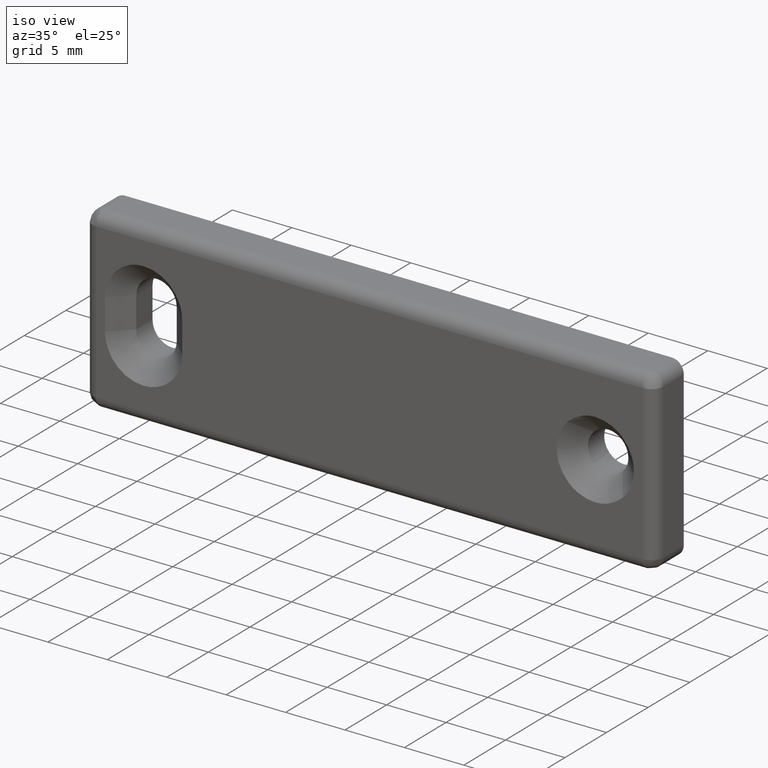
[diagram: clean part render]
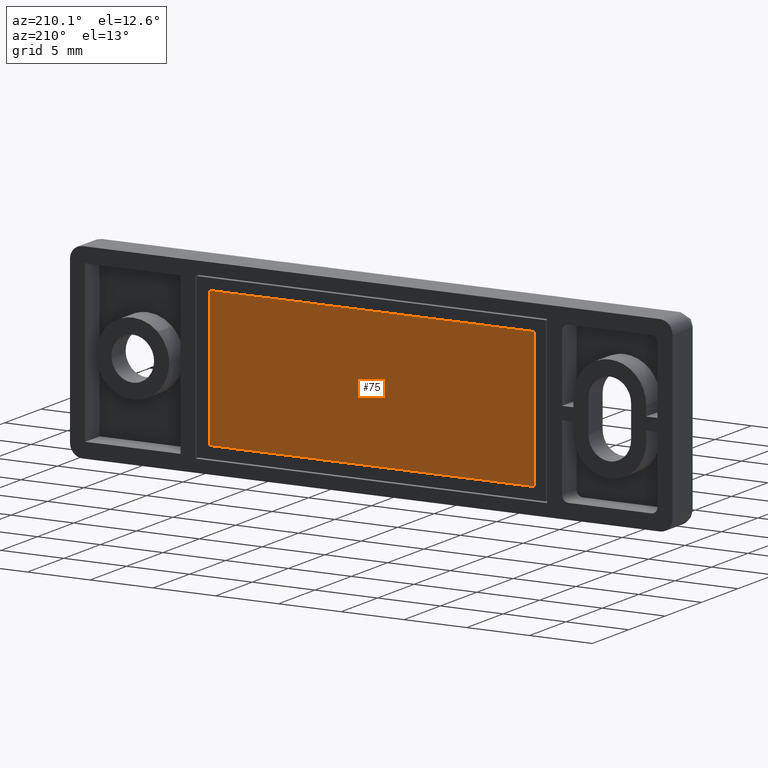
[diagram: tour spotlight — one face highlighted and labeled with its STEP entity id]
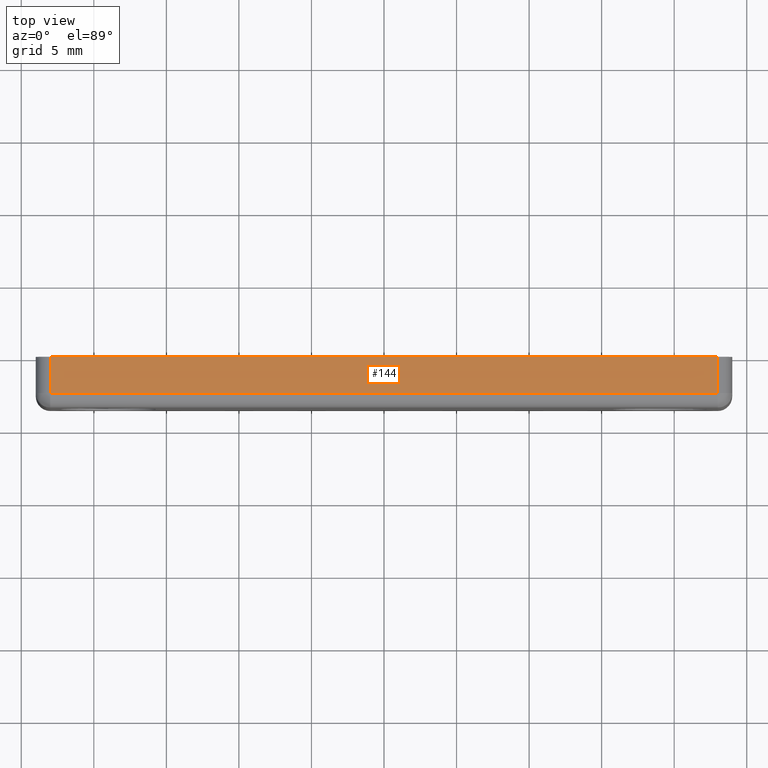
[diagram: tour spotlight — one face highlighted and labeled with its STEP entity id]
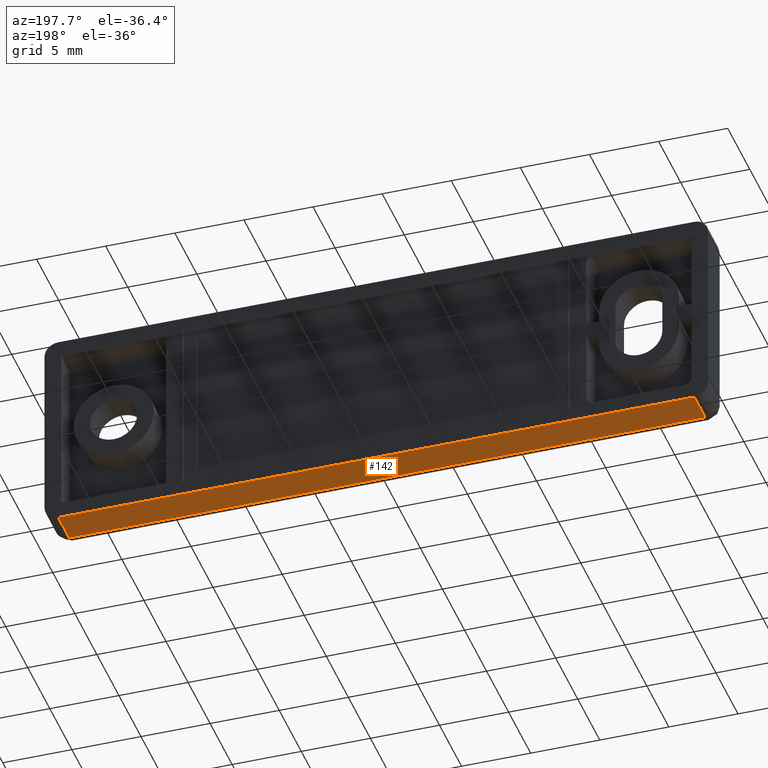
[diagram: tour spotlight — one face highlighted and labeled with its STEP entity id]
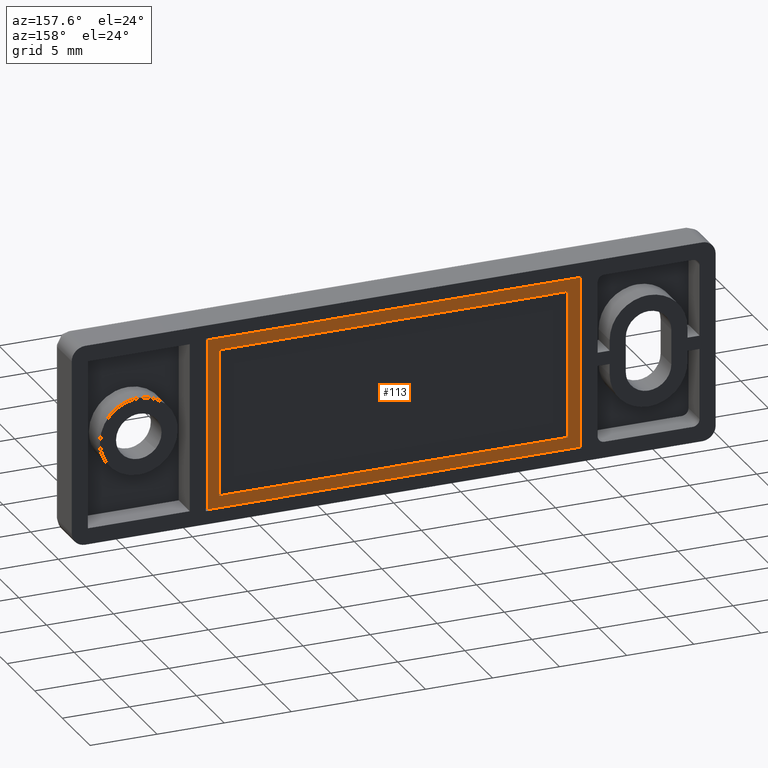
[diagram: tour spotlight — one face highlighted and labeled with its STEP entity id]
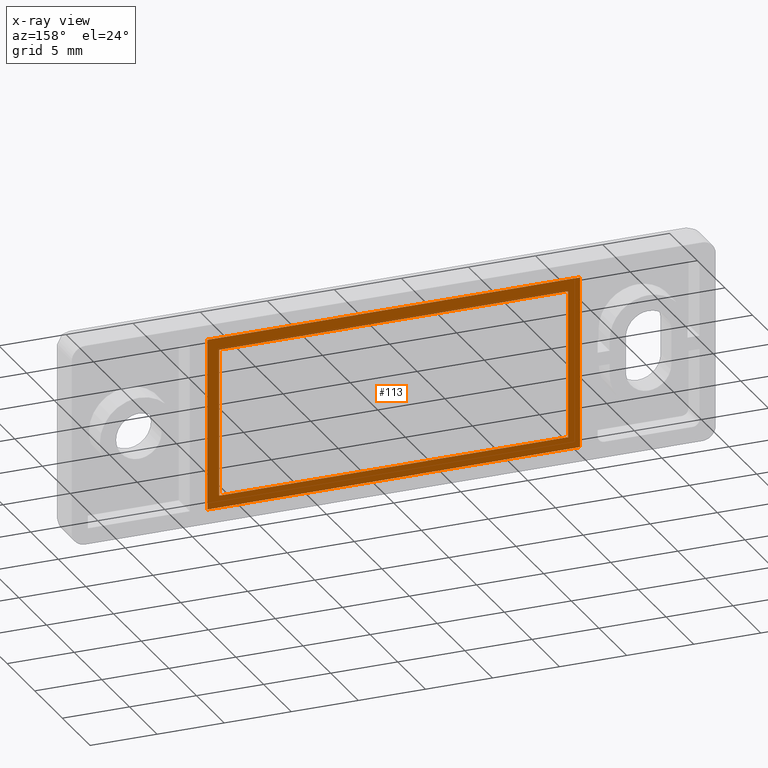
[diagram: x-ray of the same camera — body ghosted, this tour face saturated]
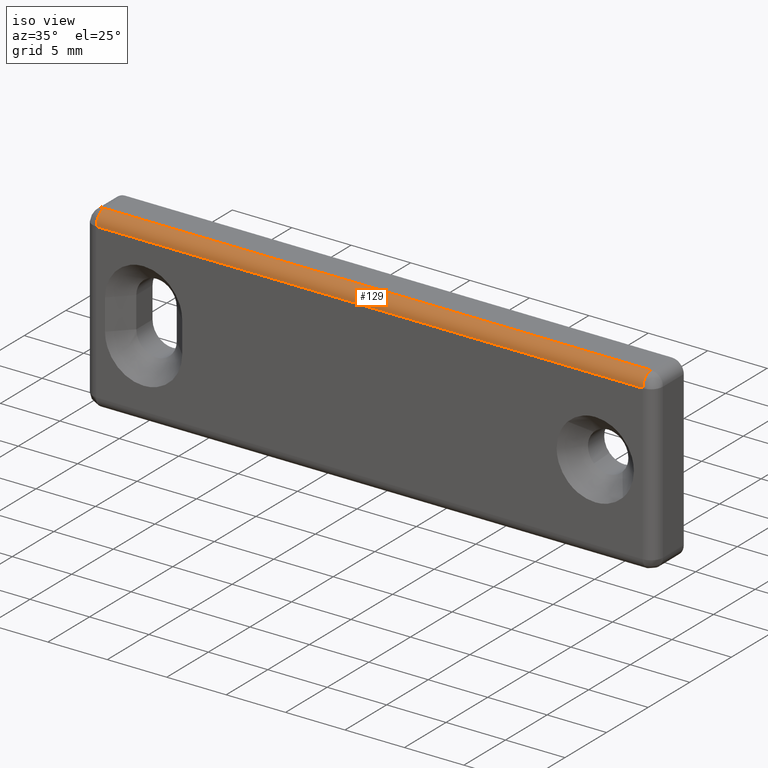
[diagram: tour spotlight — one face highlighted and labeled with its STEP entity id]
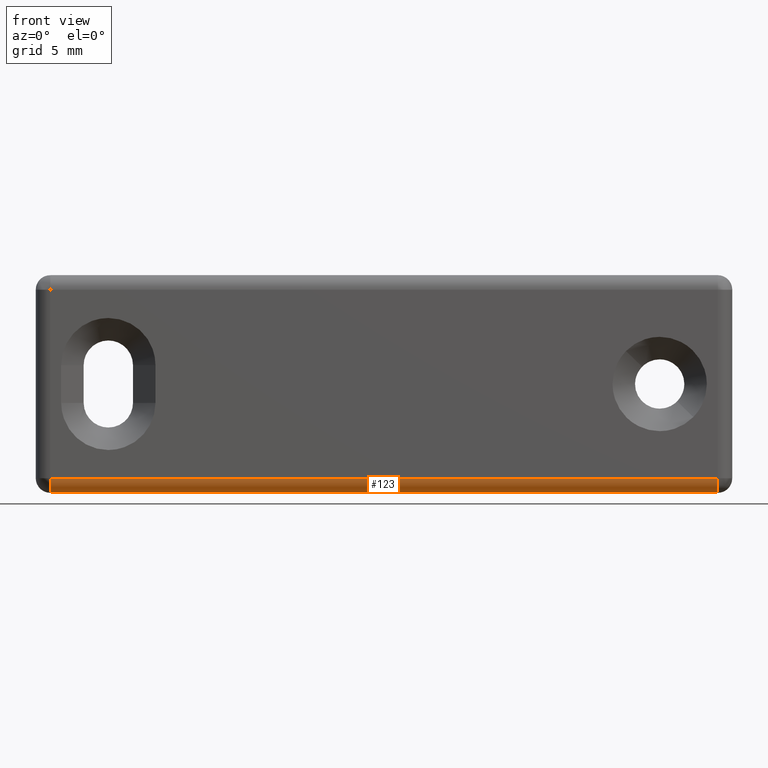
[diagram: tour spotlight — one face highlighted and labeled with its STEP entity id]
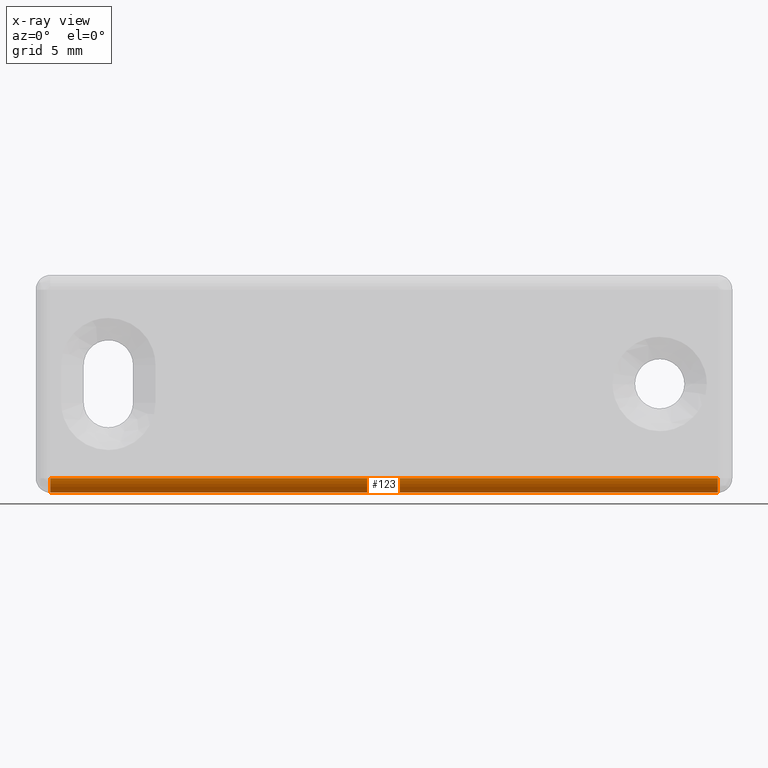
[diagram: x-ray of the same camera — body ghosted, this tour face saturated]
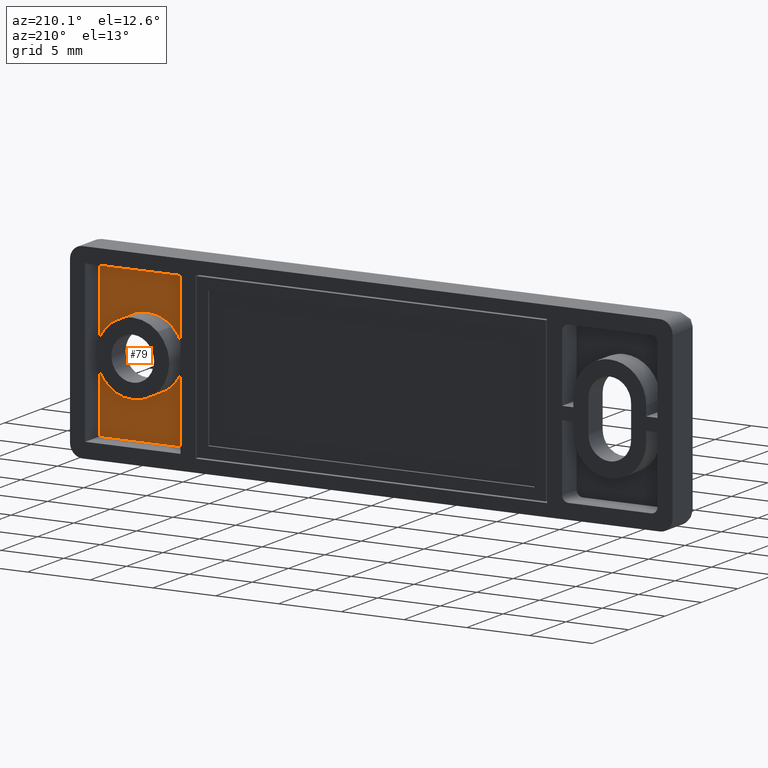
[diagram: tour spotlight — one face highlighted and labeled with its STEP entity id]
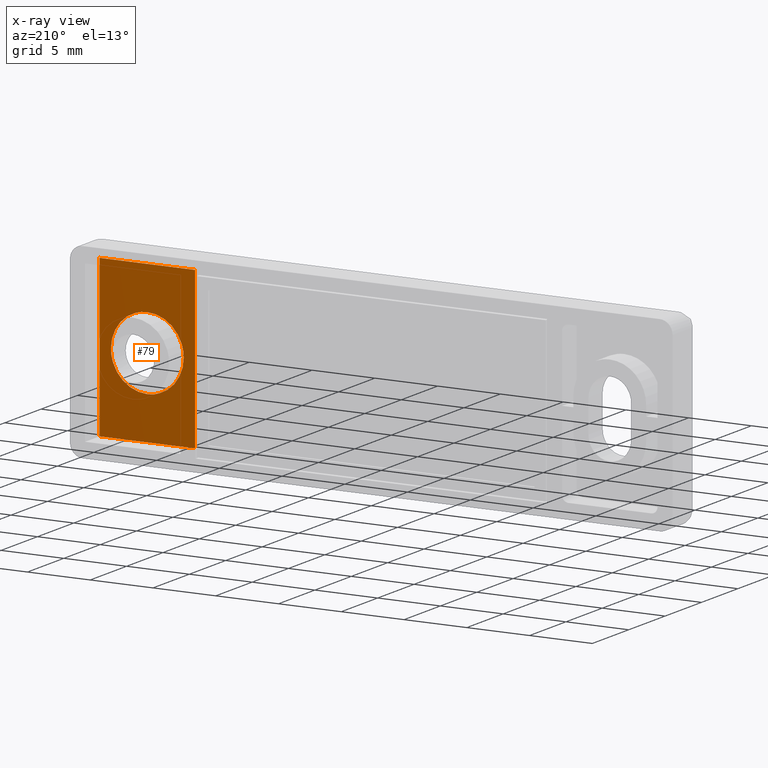
[diagram: x-ray of the same camera — body ghosted, this tour face saturated]
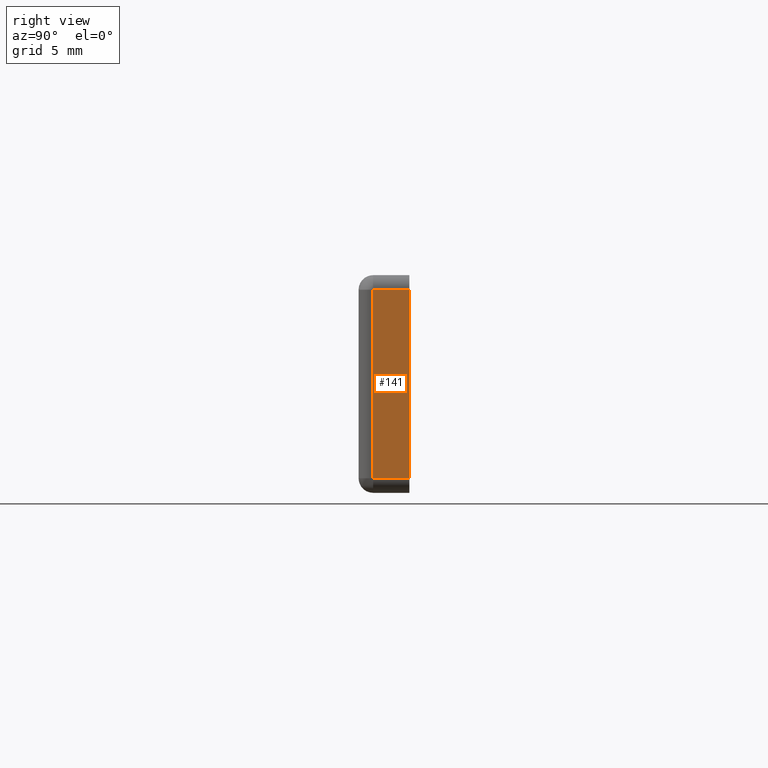
[diagram: tour spotlight — one face highlighted and labeled with its STEP entity id]
A machine part: a face-by-face anatomy tour. The part has 75 B-rep faces; the first image is the clean iso view, then the 8 largest visible faces are spotlighted one at a time (largest first), each with its STEP entity span.

Face 1 — auxiliary view, entity #75. In plain terms, the highlighted planar face has unit normal (0, 1, 0).
Definition (entity closure, byte-faithful):
#75=ADVANCED_FACE('',(#151),#150,.T.);
#150=PLANE('',#914);
#151=FACE_OUTER_BOUND('',#915,.T.);
#911=CARTESIAN_POINT('',(-1.56000000000E+01,-2.00000000000E-01,6.60000000000E+00));
#912=DIRECTION('',(0.00000000000E+00,1.00000000000E+00,0.00000000000E+00));
#913=DIRECTION('',(1.00000000000E+00,0.00000000000E+00,-3.10580123078E-17));
#914=AXIS2_PLACEMENT_3D('',#911,#912,#913);
#915=EDGE_LOOP('',(#1397,#1398,#1399,#1400));
#1397=ORIENTED_EDGE('',*,*,#1833,.F.);
#1398=ORIENTED_EDGE('',*,*,#1834,.F.);
#1399=ORIENTED_EDGE('',*,*,#1835,.F.);
#1400=ORIENTED_EDGE('',*,*,#1836,.F.);
#1833=EDGE_CURVE('',#2051,#2052,#2053,.T.);
#1834=EDGE_CURVE('',#2059,#2051,#2060,.T.);
#1835=EDGE_CURVE('',#2066,#2059,#2067,.T.);
#1836=EDGE_CURVE('',#2052,#2066,#2073,.T.);
#2051=VERTEX_POINT('',#3511);
#2052=VERTEX_POINT('',#3512);
#2053=LINE('',#3513,#3514);
#2059=VERTEX_POINT('',#3516);
#2060=LINE('',#3517,#3518);
#2066=VERTEX_POINT('',#3520);
#2067=LINE('',#3521,#3522);
#2073=LINE('',#3524,#3525);
#3511=CARTESIAN_POINT('',(1.30000000000E+01,-2.00000000000E-01,5.50000000000E+00));
#3512=CARTESIAN_POINT('',(-1.30000000000E+01,-2.00000000000E-01,5.50000000000E+00));
#3513=CARTESIAN_POINT('',(1.30000000000E+01,-2.00000000000E-01,5.50000000000E+00));
#3514=VECTOR('',#3515,2.60000000000E+01);
#3515=DIRECTION('',(-1.00000000000E+00,0.00000000000E+00,0.00000000000E+00));
#3516=CARTESIAN_POINT('',(1.30000000000E+01,-2.00000000000E-01,-5.50000000000E+00));
#3517=CARTESIAN_POINT('',(1.30000000000E+01,-2.00000000000E-01,-5.50000000000E+00));
#3518=VECTOR('',#3519,1.10000000000E+01);
#3519=DIRECTION('',(0.00000000000E+00,0.00000000000E+00,1.00000000000E+00));
#3520=CARTESIAN_POINT('',(-1.30000000000E+01,-2.00000000000E-01,-5.50000000000E+00));
#3521=CARTESIAN_POINT('',(-1.30000000000E+01,-2.00000000000E-01,-5.50000000000E+00));
#3522=VECTOR('',#3523,2.60000000000E+01);
#3523=DIRECTION('',(1.00000000000E+00,0.00000000000E+00,0.00000000000E+00));
#3524=CARTESIAN_POINT('',(-1.30000000000E+01,-2.00000000000E-01,5.50000000000E+00));
#3525=VECTOR('',#3526,1.10000000000E+01);
#3526=DIRECTION('',(0.00000000000E+00,0.00000000000E+00,-1.00000000000E+00));

Face 2 — top view, entity #144. In plain terms, the highlighted planar face has unit normal (0, 0, -1).
Definition (entity closure, byte-faithful):
#144=ADVANCED_FACE('',(#847),#846,.F.);
#846=PLANE('',#1353);
#847=FACE_OUTER_BOUND('',#1354,.T.);
#1350=CARTESIAN_POINT('',(2.76000000000E+01,-2.75000000000E+00,7.50000000000E+00));
#1351=DIRECTION('',(0.00000000000E+00,0.00000000000E+00,-1.00000000000E+00));
#1352=DIRECTION('',(-1.00000000000E+00,0.00000000000E+00,0.00000000000E+00));
#1353=AXIS2_PLACEMENT_3D('',#1350,#1351,#1352);
#1354=EDGE_LOOP('',(#1745,#1746,#1747,#1748));
#1745=ORIENTED_EDGE('',*,*,#2046,.T.);
#1746=ORIENTED_EDGE('',*,*,#2018,.T.);
#1747=ORIENTED_EDGE('',*,*,#2015,.T.);
#1748=ORIENTED_EDGE('',*,*,#2022,.T.);
#2015=EDGE_CURVE('',#3226,#3272,#3279,.T.);
#2018=EDGE_CURVE('',#3286,#3226,#3299,.T.);
#2022=EDGE_CURVE('',#3272,#3318,#3325,.T.);
#2046=EDGE_CURVE('',#3318,#3286,#3481,.T.);
#3226=VERTEX_POINT('',#4494);
#3272=VERTEX_POINT('',#4544);
#3279=LINE('',#4554,#4555);
#3286=VERTEX_POINT('',#4558);
#3299=LINE('',#4570,#4571);
#3318=VERTEX_POINT('',#4585);
#3325=LINE('',#4595,#4596);
#3481=LINE('',#4730,#4731);
#4494=CARTESIAN_POINT('',(-2.30000000000E+01,-2.50000000000E+00,7.50000000000E+00));
#4544=CARTESIAN_POINT('',(2.30000000000E+01,-2.50000000000E+00,7.50000000000E+00));
#4554=CARTESIAN_POINT('',(-2.30000000000E+01,-2.50000000000E+00,7.50000000000E+00));
#4555=VECTOR('',#4556,4.60000000000E+01);
#4556=DIRECTION('',(1.00000000000E+00,0.00000000000E+00,0.00000000000E+00));
#4558=CARTESIAN_POINT('',(-2.30000000000E+01,0.00000000000E+00,7.50000000000E+00));
#4570=CARTESIAN_POINT('',(-2.30000000000E+01,0.00000000000E+00,7.50000000000E+00));
#4571=VECTOR('',#4572,2.50000000000E+00);
#4572=DIRECTION('',(0.00000000000E+00,-1.00000000000E+00,0.00000000000E+00));
#4585=CARTESIAN_POINT('',(2.30000000000E+01,0.00000000000E+00,7.50000000000E+00));
#4595=CARTESIAN_POINT('',(2.30000000000E+01,-2.50000000000E+00,7.50000000000E+00));
#4596=VECTOR('',#4597,2.50000000000E+00);
#4597=DIRECTION('',(0.00000000000E+00,1.00000000000E+00,0.00000000000E+00));
#4730=CARTESIAN_POINT('',(2.30000000000E+01,0.00000000000E+00,7.50000000000E+00));
#4731=VECTOR('',#4732,4.60000000000E+01);
#4732=DIRECTION('',(-1.00000000000E+00,0.00000000000E+00,0.00000000000E+00));

Face 3 — auxiliary view, entity #142. In plain terms, the highlighted planar face has unit normal (0, 0, 1).
Definition (entity closure, byte-faithful):
#142=ADVANCED_FACE('',(#827),#826,.F.);
#826=PLANE('',#1343);
#827=FACE_OUTER_BOUND('',#1344,.T.);
#1340=CARTESIAN_POINT('',(-2.76000000000E+01,-2.75000000000E+00,-7.50000000000E+00));
#1341=DIRECTION('',(0.00000000000E+00,0.00000000000E+00,1.00000000000E+00));
#1342=DIRECTION('',(1.00000000000E+00,0.00000000000E+00,0.00000000000E+00));
#1343=AXIS2_PLACEMENT_3D('',#1340,#1341,#1342);
#1344=EDGE_LOOP('',(#1737,#1738,#1739,#1740));
#1737=ORIENTED_EDGE('',*,*,#2002,.T.);
#1738=ORIENTED_EDGE('',*,*,#1998,.T.);
#1739=ORIENTED_EDGE('',*,*,#2044,.T.);
#1740=ORIENTED_EDGE('',*,*,#2011,.T.);
#1998=EDGE_CURVE('',#3147,#3162,#3169,.T.);
#2002=EDGE_CURVE('',#3187,#3147,#3194,.T.);
#2011=EDGE_CURVE('',#3240,#3187,#3253,.T.);
#2044=EDGE_CURVE('',#3162,#3240,#3469,.T.);
#3147=VERTEX_POINT('',#4400);
#3162=VERTEX_POINT('',#4416);
#3169=LINE('',#4426,#4427);
#3187=VERTEX_POINT('',#4447);
#3194=LINE('',#4457,#4458);
#3240=VERTEX_POINT('',#4515);
#3253=LINE('',#4527,#4528);
#3469=LINE('',#4724,#4725);
#4400=CARTESIAN_POINT('',(-2.30000000000E+01,-2.50000000000E+00,-7.50000000000E+00));
#4416=CARTESIAN_POINT('',(-2.30000000000E+01,0.00000000000E+00,-7.50000000000E+00));
#4426=CARTESIAN_POINT('',(-2.30000000000E+01,-2.50000000000E+00,-7.50000000000E+00));
#4427=VECTOR('',#4428,2.50000000000E+00);
#4428=DIRECTION('',(0.00000000000E+00,1.00000000000E+00,0.00000000000E+00));
#4447=CARTESIAN_POINT('',(2.30000000000E+01,-2.50000000000E+00,-7.50000000000E+00));
#4457=CARTESIAN_POINT('',(2.30000000000E+01,-2.50000000000E+00,-7.50000000000E+00));
#4458=VECTOR('',#4459,4.60000000000E+01);
#4459=DIRECTION('',(-1.00000000000E+00,0.00000000000E+00,0.00000000000E+00));
#4515=CARTESIAN_POINT('',(2.30000000000E+01,0.00000000000E+00,-7.50000000000E+00));
#4527=CARTESIAN_POINT('',(2.30000000000E+01,0.00000000000E+00,-7.50000000000E+00));
#4528=VECTOR('',#4529,2.50000000000E+00);
#4529=DIRECTION('',(0.00000000000E+00,-1.00000000000E+00,0.00000000000E+00));
#4724=CARTESIAN_POINT('',(-2.30000000000E+01,0.00000000000E+00,-7.50000000000E+00));
#4725=VECTOR('',#4726,4.60000000000E+01);
#4726=DIRECTION('',(1.00000000000E+00,0.00000000000E+00,0.00000000000E+00));

Face 4 — auxiliary view, entity #113. An x-ray twin of the same camera follows (body ghosted, this face saturated) — the face is partly hidden behind the body. In plain terms, the highlighted planar face has unit normal (0, 1, 0).
Definition (entity closure, byte-faithful):
#113=ADVANCED_FACE('',(#536,#537),#535,.T.);
#535=PLANE('',#1129);
#536=FACE_OUTER_BOUND('',#1130,.T.);
#537=FACE_BOUND('',#1131,.T.);
#1126=CARTESIAN_POINT('',(-1.66800000000E+01,0.00000000000E+00,7.68000000000E+00));
#1127=DIRECTION('',(-0.00000000000E+00,1.00000000000E+00,0.00000000000E+00));
#1128=DIRECTION('',(1.00000000000E+00,0.00000000000E+00,0.00000000000E+00));
#1129=AXIS2_PLACEMENT_3D('',#1126,#1127,#1128);
#1130=EDGE_LOOP('',(#1613,#1614,#1615,#1616));
#1131=EDGE_LOOP('',(#1617,#1618,#1619,#1620));
#1613=ORIENTED_EDGE('',*,*,#1981,.F.);
#1614=ORIENTED_EDGE('',*,*,#1974,.F.);
#1615=ORIENTED_EDGE('',*,*,#1977,.F.);
#1616=ORIENTED_EDGE('',*,*,#1979,.F.);
#1617=ORIENTED_EDGE('',*,*,#1982,.T.);
#1618=ORIENTED_EDGE('',*,*,#1983,.T.);
#1619=ORIENTED_EDGE('',*,*,#1984,.T.);
#1620=ORIENTED_EDGE('',*,*,#1985,.T.);
#1974=EDGE_CURVE('',#3011,#3012,#3013,.T.);
#1977=EDGE_CURVE('',#3031,#3011,#3032,.T.);
#1979=EDGE_CURVE('',#3044,#3031,#3045,.T.);
#1981=EDGE_CURVE('',#3012,#3044,#3057,.T.);
#1982=EDGE_CURVE('',#3063,#3064,#3065,.T.);
#1983=EDGE_CURVE('',#3064,#3071,#3072,.T.);
#1984=EDGE_CURVE('',#3071,#3078,#3079,.T.);
#1985=EDGE_CURVE('',#3078,#3063,#3085,.T.);
#3011=VERTEX_POINT('',#4327);
#3012=VERTEX_POINT('',#4328);
#3013=LINE('',#4329,#4330);
#3031=VERTEX_POINT('',#4338);
#3032=LINE('',#4339,#4340);
#3044=VERTEX_POINT('',#4345);
#3045=LINE('',#4346,#4347);
#3057=LINE('',#4352,#4353);
#3063=VERTEX_POINT('',#4355);
#3064=VERTEX_POINT('',#4356);
#3065=LINE('',#4357,#4358);
#3071=VERTEX_POINT('',#4360);
#3072=LINE('',#4361,#4362);
#3078=VERTEX_POINT('',#4364);
#3079=LINE('',#4365,#4366);
#3085=LINE('',#4368,#4369);
#4327=CARTESIAN_POINT('',(1.39000000000E+01,0.00000000000E+00,-6.40000000000E+00));
#4328=CARTESIAN_POINT('',(1.39000000000E+01,0.00000000000E+00,6.40000000000E+00));
#4329=CARTESIAN_POINT('',(1.39000000000E+01,0.00000000000E+00,-6.40000000000E+00));
#4330=VECTOR('',#4331,1.28000000000E+01);
#4331=DIRECTION('',(0.00000000000E+00,0.00000000000E+00,1.00000000000E+00));
#4338=CARTESIAN_POINT('',(-1.39000000000E+01,0.00000000000E+00,-6.40000000000E+00));
#4339=CARTESIAN_POINT('',(-1.39000000000E+01,0.00000000000E+00,-6.40000000000E+00));
#4340=VECTOR('',#4341,2.78000000000E+01);
#4341=DIRECTION('',(1.00000000000E+00,0.00000000000E+00,0.00000000000E+00));
#4345=CARTESIAN_POINT('',(-1.39000000000E+01,0.00000000000E+00,6.40000000000E+00));
#4346=CARTESIAN_POINT('',(-1.39000000000E+01,0.00000000000E+00,6.40000000000E+00));
#4347=VECTOR('',#4348,1.28000000000E+01);
#4348=DIRECTION('',(0.00000000000E+00,0.00000000000E+00,-1.00000000000E+00));
#4352=CARTESIAN_POINT('',(1.39000000000E+01,0.00000000000E+00,6.40000000000E+00));
#4353=VECTOR('',#4354,2.78000000000E+01);
#4354=DIRECTION('',(-1.00000000000E+00,0.00000000000E+00,0.00000000000E+00));
#4355=CARTESIAN_POINT('',(1.30000000000E+01,0.00000000000E+00,-5.50000000000E+00));
#4356=CARTESIAN_POINT('',(1.30000000000E+01,0.00000000000E+00,5.50000000000E+00));
#4357=CARTESIAN_POINT('',(1.30000000000E+01,0.00000000000E+00,-5.50000000000E+00));
#4358=VECTOR('',#4359,1.10000000000E+01);
#4359=DIRECTION('',(0.00000000000E+00,0.00000000000E+00,1.00000000000E+00));
#4360=CARTESIAN_POINT('',(-1.30000000000E+01,0.00000000000E+00,5.50000000000E+00));
#4361=CARTESIAN_POINT('',(1.30000000000E+01,0.00000000000E+00,5.50000000000E+00));
#4362=VECTOR('',#4363,2.60000000000E+01);
#4363=DIRECTION('',(-1.00000000000E+00,0.00000000000E+00,0.00000000000E+00));
#4364=CARTESIAN_POINT('',(-1.30000000000E+01,0.00000000000E+00,-5.50000000000E+00));
#4365=CARTESIAN_POINT('',(-1.30000000000E+01,0.00000000000E+00,5.50000000000E+00));
#4366=VECTOR('',#4367,1.10000000000E+01);
#4367=DIRECTION('',(0.00000000000E+00,0.00000000000E+00,-1.00000000000E+00));
#4368=CARTESIAN_POINT('',(-1.30000000000E+01,0.00000000000E+00,-5.50000000000E+00));
#4369=VECTOR('',#4370,2.60000000000E+01);
#4370=DIRECTION('',(1.00000000000E+00,0.00000000000E+00,0.00000000000E+00));

Face 5 — iso view, entity #129. In plain terms, the highlighted cylindrical surface (edge-blend (fillet) strip) has radius 1 mm, axis along (-1, -0, 0).
Definition (entity closure, byte-faithful):
#129=ADVANCED_FACE('',(#697),#696,.T.);
#696=CYLINDRICAL_SURFACE('',#1246,1.00000000000E+00);
#697=FACE_OUTER_BOUND('',#1247,.T.);
#1243=CARTESIAN_POINT('',(-2.41787500000E+01,-2.50000000000E+00,6.50000000000E+00));
#1244=DIRECTION('',(-1.00000000000E+00,-7.67244086622E-15,6.09057965495E-15));
#1245=DIRECTION('',(-5.88765147747E-15,-2.61769483077E-02,-9.99657324976E-01));
#1246=AXIS2_PLACEMENT_3D('',#1243,#1244,#1245);
#1247=EDGE_LOOP('',(#1678,#1679,#1680,#1681));
#1678=ORIENTED_EDGE('',*,*,#2014,.T.);
#1679=ORIENTED_EDGE('',*,*,#2015,.F.);
#1680=ORIENTED_EDGE('',*,*,#2007,.F.);
#1681=ORIENTED_EDGE('',*,*,#1958,.F.);
#1958=EDGE_CURVE('',#2893,#2900,#2901,.T.);
#2007=EDGE_CURVE('',#2900,#3226,#3227,.T.);
#2014=EDGE_CURVE('',#2893,#3272,#3273,.T.);
#2015=EDGE_CURVE('',#3226,#3272,#3279,.T.);
#2893=VERTEX_POINT('',#4195);
#2900=VERTEX_POINT('',#4199);
#2901=LINE('',#4200,#4201);
#3226=VERTEX_POINT('',#4494);
#3227=(BOUNDED_CURVE() B_SPLINE_CURVE(3,(#4495,#4496,#4497,#4498,#4499,#4500,#4501,#4502,#4503),.UNSPECIFIED.,.F.,.F.) B_SPLINE_CURVE_WITH_KNOTS((4,1,1,1,1,1,4),(8.62291410000E-08,2.69985456172E-01,4.66346202947E-01,6.87254947437E-01,9.81761028778E-01,1.20267184389E+00,1.57083574434E+00),.UNSPECIFIED.) CURVE() GEOMETRIC_REPRESENTATION_ITEM() RATIONAL_B_SPLINE_CURVE((1.00000000000E+00,1.00000000000E+00,1.00000000000E+00,1.00000000000E+00,1.00000000000E+00,1.00000000000E+00,1.00000000000E+00,1.00000000000E+00,1.00000000000E+00)) REPRESENTATION_ITEM('') );
#3272=VERTEX_POINT('',#4544);
#3273=(BOUNDED_CURVE() B_SPLINE_CURVE(3,(#4545,#4546,#4547,#4548,#4549,#4550,#4551,#4552,#4553),.UNSPECIFIED.,.F.,.F.) B_SPLINE_CURVE_WITH_KNOTS((4,1,1,1,1,1,4),(8.62291410000E-08,2.69985456172E-01,4.66346202947E-01,6.87254947437E-01,9.81761028778E-01,1.20267184389E+00,1.57083574434E+00),.UNSPECIFIED.) CURVE() GEOMETRIC_REPRESENTATION_ITEM() RATIONAL_B_SPLINE_CURVE((1.00000000000E+00,1.00000000000E+00,1.00000000000E+00,1.00000000000E+00,1.00000000000E+00,1.00000000000E+00,1.00000000000E+00,1.00000000000E+00,1.00000000000E+00)) REPRESENTATION_ITEM('') );
#3279=LINE('',#4554,#4555);
#4195=CARTESIAN_POINT('',(2.30000000000E+01,-3.50000000000E+00,6.50000000000E+00));
#4199=CARTESIAN_POINT('',(-2.30000000000E+01,-3.50000000000E+00,6.50000000000E+00));
#4200=CARTESIAN_POINT('',(2.30000000000E+01,-3.50000000000E+00,6.50000000000E+00));
#4201=VECTOR('',#4202,4.60000000000E+01);
#4202=DIRECTION('',(-1.00000000000E+00,0.00000000000E+00,0.00000000000E+00));
#4494=CARTESIAN_POINT('',(-2.30000000000E+01,-2.50000000000E+00,7.50000000000E+00));
#4495=CARTESIAN_POINT('',(-2.30000000000E+01,-3.50000000000E+00,6.50000000000E+00));
#4496=CARTESIAN_POINT('',(-2.30000000000E+01,-3.50003356085E+00,6.58999700223E+00));
#4497=CARTESIAN_POINT('',(-2.30000000000E+01,-3.47886449952E+00,6.74542212602E+00));
#4498=CARTESIAN_POINT('',(-2.30000000000E+01,-3.39602289191E+00,6.96018344893E+00));
#4499=CARTESIAN_POINT('',(-2.30000000000E+01,-3.26587815674E+00,7.16029820203E+00));
#4500=CARTESIAN_POINT('',(-2.30000000000E+01,-3.08204266939E+00,7.32690613932E+00));
#4501=CARTESIAN_POINT('',(-2.30000000000E+01,-2.81899434291E+00,7.46336510482E+00));
#4502=CARTESIAN_POINT('',(-2.30000000000E+01,-2.62273969442E+00,7.50011627941E+00));
#4503=CARTESIAN_POINT('',(-2.30000000000E+01,-2.50000000000E+00,7.50000000000E+00));
#4544=CARTESIAN_POINT('',(2.30000000000E+01,-2.50000000000E+00,7.50000000000E+00));
#4545=CARTESIAN_POINT('',(2.30000000000E+01,-3.50000000000E+00,6.50000000000E+00));
#4546=CARTESIAN_POINT('',(2.30000000000E+01,-3.50003356085E+00,6.58999700223E+00));
#4547=CARTESIAN_POINT('',(2.30000000000E+01,-3.47886449952E+00,6.74542212602E+00));
#4548=CARTESIAN_POINT('',(2.30000000000E+01,-3.39602289191E+00,6.96018344893E+00));
#4549=CARTESIAN_POINT('',(2.30000000000E+01,-3.26587815674E+00,7.16029820203E+00));
#4550=CARTESIAN_POINT('',(2.30000000000E+01,-3.08204266939E+00,7.32690613932E+00));
#4551=CARTESIAN_POINT('',(2.30000000000E+01,-2.81899434291E+00,7.46336510482E+00));
#4552=CARTESIAN_POINT('',(2.30000000000E+01,-2.62273969442E+00,7.50011627941E+00));
#4553=CARTESIAN_POINT('',(2.30000000000E+01,-2.50000000000E+00,7.50000000000E+00));
#4554=CARTESIAN_POINT('',(-2.30000000000E+01,-2.50000000000E+00,7.50000000000E+00));
#4555=VECTOR('',#4556,4.60000000000E+01);
#4556=DIRECTION('',(1.00000000000E+00,0.00000000000E+00,0.00000000000E+00));

Face 6 — front view, entity #123. An x-ray twin of the same camera follows (body ghosted, this face saturated) — the face is partly hidden behind the body. In plain terms, the highlighted cylindrical surface (edge-blend (fillet) strip) has radius 1 mm, axis along (1, -0, -0).
Definition (entity closure, byte-faithful):
#123=ADVANCED_FACE('',(#637),#636,.T.);
#636=CYLINDRICAL_SURFACE('',#1192,1.00000000000E+00);
#637=FACE_OUTER_BOUND('',#1193,.T.);
#1189=CARTESIAN_POINT('',(2.41787500000E+01,-2.50000000000E+00,-6.50000000000E+00));
#1190=DIRECTION('',(1.00000000000E+00,-7.67244086622E-15,-6.09057965495E-15));
#1191=DIRECTION('',(5.88765147747E-15,-2.61769483077E-02,9.99657324976E-01));
#1192=AXIS2_PLACEMENT_3D('',#1189,#1190,#1191);
#1193=EDGE_LOOP('',(#1656,#1657,#1658,#1659));
#1656=ORIENTED_EDGE('',*,*,#2001,.T.);
#1657=ORIENTED_EDGE('',*,*,#1956,.F.);
#1658=ORIENTED_EDGE('',*,*,#1999,.F.);
#1659=ORIENTED_EDGE('',*,*,#2002,.F.);
#1956=EDGE_CURVE('',#2885,#2886,#2887,.T.);
#1999=EDGE_CURVE('',#3147,#2885,#3175,.T.);
#2001=EDGE_CURVE('',#3187,#2886,#3188,.T.);
#2002=EDGE_CURVE('',#3187,#3147,#3194,.T.);
#2885=VERTEX_POINT('',#4190);
#2886=VERTEX_POINT('',#4191);
#2887=LINE('',#4192,#4193);
#3147=VERTEX_POINT('',#4400);
#3175=(BOUNDED_CURVE() B_SPLINE_CURVE(3,(#4429,#4430,#4431,#4432,#4433,#4434,#4435,#4436,#4437),.UNSPECIFIED.,.F.,.F.) B_SPLINE_CURVE_WITH_KNOTS((4,1,1,1,1,1,4),(8.62287820000E-08,2.69985456171E-01,5.89074653022E-01,8.09950585865E-01,9.81761028778E-01,1.20267184389E+00,1.57083574434E+00),.UNSPECIFIED.) CURVE() GEOMETRIC_REPRESENTATION_ITEM() RATIONAL_B_SPLINE_CURVE((1.00000000000E+00,1.00000000000E+00,1.00000000000E+00,1.00000000000E+00,1.00000000000E+00,1.00000000000E+00,1.00000000000E+00,1.00000000000E+00,1.00000000000E+00)) REPRESENTATION_ITEM('') );
#3187=VERTEX_POINT('',#4447);
#3188=(BOUNDED_CURVE() B_SPLINE_CURVE(3,(#4448,#4449,#4450,#4451,#4452,#4453,#4454,#4455,#4456),.UNSPECIFIED.,.F.,.F.) B_SPLINE_CURVE_WITH_KNOTS((4,1,1,1,1,1,4),(8.62287820000E-08,2.69985456171E-01,5.89074653022E-01,8.09950585865E-01,9.81761028778E-01,1.20267184389E+00,1.57083574434E+00),.UNSPECIFIED.) CURVE() GEOMETRIC_REPRESENTATION_ITEM() RATIONAL_B_SPLINE_CURVE((1.00000000000E+00,1.00000000000E+00,1.00000000000E+00,1.00000000000E+00,1.00000000000E+00,1.00000000000E+00,1.00000000000E+00,1.00000000000E+00,1.00000000000E+00)) REPRESENTATION_ITEM('') );
#3194=LINE('',#4457,#4458);
#4190=CARTESIAN_POINT('',(-2.30000000000E+01,-3.50000000000E+00,-6.50000000000E+00));
#4191=CARTESIAN_POINT('',(2.30000000000E+01,-3.50000000000E+00,-6.50000000000E+00));
#4192=CARTESIAN_POINT('',(-2.30000000000E+01,-3.50000000000E+00,-6.50000000000E+00));
#4193=VECTOR('',#4194,4.60000000000E+01);
#4194=DIRECTION('',(1.00000000000E+00,0.00000000000E+00,0.00000000000E+00));
#4400=CARTESIAN_POINT('',(-2.30000000000E+01,-2.50000000000E+00,-7.50000000000E+00));
#4429=CARTESIAN_POINT('',(-2.30000000000E+01,-2.50000000000E+00,-7.50000000000E+00));
#4430=CARTESIAN_POINT('',(-2.30000000000E+01,-2.58999328132E+00,-7.50002522936E+00));
#4431=CARTESIAN_POINT('',(-2.30000000000E+01,-2.78634860680E+00,-7.47334472824E+00));
#4432=CARTESIAN_POINT('',(-2.30000000000E+01,-3.03493532033E+00,-7.35950509808E+00));
#4433=CARTESIAN_POINT('',(-2.30000000000E+01,-3.21755550627E+00,-7.20576409950E+00));
#4434=CARTESIAN_POINT('',(-2.30000000000E+01,-3.34582849638E+00,-7.04549553210E+00));
#4435=CARTESIAN_POINT('',(-2.30000000000E+01,-3.46338293626E+00,-6.81900716485E+00));
#4436=CARTESIAN_POINT('',(-2.30000000000E+01,-3.50010928149E+00,-6.62273503432E+00));
#4437=CARTESIAN_POINT('',(-2.30000000000E+01,-3.50000000000E+00,-6.50000000000E+00));
#4447=CARTESIAN_POINT('',(2.30000000000E+01,-2.50000000000E+00,-7.50000000000E+00));
#4448=CARTESIAN_POINT('',(2.30000000000E+01,-2.50000000000E+00,-7.50000000000E+00));
#4449=CARTESIAN_POINT('',(2.30000000000E+01,-2.58999328132E+00,-7.50002522936E+00));
#4450=CARTESIAN_POINT('',(2.30000000000E+01,-2.78634860680E+00,-7.47334472824E+00));
#4451=CARTESIAN_POINT('',(2.30000000000E+01,-3.03493532033E+00,-7.35950509808E+00));
#4452=CARTESIAN_POINT('',(2.30000000000E+01,-3.21755550627E+00,-7.20576409950E+00));
#4453=CARTESIAN_POINT('',(2.30000000000E+01,-3.34582849638E+00,-7.04549553210E+00));
#4454=CARTESIAN_POINT('',(2.30000000000E+01,-3.46338293626E+00,-6.81900716485E+00));
#4455=CARTESIAN_POINT('',(2.30000000000E+01,-3.50010928149E+00,-6.62273503432E+00));
#4456=CARTESIAN_POINT('',(2.30000000000E+01,-3.50000000000E+00,-6.50000000000E+00));
#4457=CARTESIAN_POINT('',(2.30000000000E+01,-2.50000000000E+00,-7.50000000000E+00));
#4458=VECTOR('',#4459,4.60000000000E+01);
#4459=DIRECTION('',(-1.00000000000E+00,0.00000000000E+00,0.00000000000E+00));

Face 7 — auxiliary view, entity #79. An x-ray twin of the same camera follows (body ghosted, this face saturated) — the face is partly hidden behind the body. In plain terms, the highlighted planar face has unit normal (0, 1, 0).
Definition (entity closure, byte-faithful):
#79=ADVANCED_FACE('',(#192,#193),#191,.T.);
#191=PLANE('',#955);
#192=FACE_OUTER_BOUND('',#956,.T.);
#193=FACE_BOUND('',#957,.T.);
#952=CARTESIAN_POINT('',(1.44400000000E+01,-2.00000000000E+00,7.56000000000E+00));
#953=DIRECTION('',(-0.00000000000E+00,1.00000000000E+00,0.00000000000E+00));
#954=DIRECTION('',(1.00000000000E+00,0.00000000000E+00,0.00000000000E+00));
#955=AXIS2_PLACEMENT_3D('',#952,#953,#954);
#956=EDGE_LOOP('',(#1433,#1434,#1435,#1436));
#957=EDGE_LOOP('',(#1437,#1438,#1439,#1440,#1441,#1442,#1443,#1444));
#1433=ORIENTED_EDGE('',*,*,#1861,.F.);
#1434=ORIENTED_EDGE('',*,*,#1862,.F.);
#1435=ORIENTED_EDGE('',*,*,#1863,.F.);
#1436=ORIENTED_EDGE('',*,*,#1864,.F.);
#1437=ORIENTED_EDGE('',*,*,#1865,.T.);
#1438=ORIENTED_EDGE('',*,*,#1866,.T.);
#1439=ORIENTED_EDGE('',*,*,#1867,.T.);
#1440=ORIENTED_EDGE('',*,*,#1868,.T.);
#1441=ORIENTED_EDGE('',*,*,#1869,.T.);
#1442=ORIENTED_EDGE('',*,*,#1870,.T.);
#1443=ORIENTED_EDGE('',*,*,#1871,.T.);
#1444=ORIENTED_EDGE('',*,*,#1872,.T.);
#1861=EDGE_CURVE('',#2245,#2246,#2247,.T.);
#1862=EDGE_CURVE('',#2253,#2245,#2254,.T.);
#1863=EDGE_CURVE('',#2260,#2253,#2261,.T.);
#1864=EDGE_CURVE('',#2246,#2260,#2267,.T.);
#1865=EDGE_CURVE('',#2273,#2274,#2275,.T.);
#1866=EDGE_CURVE('',#2274,#2281,#2282,.T.);
#1867=EDGE_CURVE('',#2281,#2288,#2289,.T.);
#1868=EDGE_CURVE('',#2288,#2295,#2296,.T.);
#1869=EDGE_CURVE('',#2295,#2302,#2303,.T.);
#1870=EDGE_CURVE('',#2302,#2309,#2310,.T.);
#1871=EDGE_CURVE('',#2309,#2316,#2317,.T.);
#1872=EDGE_CURVE('',#2316,#2273,#2323,.T.);
#2245=VERTEX_POINT('',#3704);
#2246=VERTEX_POINT('',#3705);
#2247=LINE('',#3706,#3707);
#2253=VERTEX_POINT('',#3709);
#2254=LINE('',#3710,#3711);
#2260=VERTEX_POINT('',#3713);
#2261=LINE('',#3714,#3715);
#2267=LINE('',#3717,#3718);
#2273=VERTEX_POINT('',#3720);
#2274=VERTEX_POINT('',#3721);
#2275=(BOUNDED_CURVE() B_SPLINE_CURVE(3,(#3722,#3723,#3724,#3725,#3726,#3727),.UNSPECIFIED.,.F.,.F.) B_SPLINE_CURVE_WITH_KNOTS((4,1,1,4),(5.91963720000E-08,8.54120512762E-01,1.63708484326E+00,2.17091161978E+00),.UNSPECIFIED.) CURVE() GEOMETRIC_REPRESENTATION_ITEM() RATIONAL_B_SPLINE_CURVE((1.00000000000E+00,1.00000000000E+00,1.00000000000E+00,1.00000000000E+00,1.00000000000E+00,1.00000000000E+00)) REPRESENTATION_ITEM('') );
#2281=VERTEX_POINT('',#3728);
#2282=(BOUNDED_CURVE() B_SPLINE_CURVE(3,(#3729,#3730,#3731,#3732,#3733,#3734,#3735),.UNSPECIFIED.,.F.,.F.) B_SPLINE_CURVE_WITH_KNOTS((4,1,1,1,4),(2.17091161978E+00,2.70471897106E+00,3.13178920062E+00,3.87916020053E+00,4.55533820070E+00),.UNSPECIFIED.) CURVE() GEOMETRIC_REPRESENTATION_ITEM() RATIONAL_B_SPLINE_CURVE((1.00000000000E+00,1.00000000000E+00,1.00000000000E+00,1.00000000000E+00,1.00000000000E+00,1.00000000000E+00,1.00000000000E+00)) REPRESENTATION_ITEM('') );
#2288=VERTEX_POINT('',#3736);
#2289=(BOUNDED_CURVE() B_SPLINE_CURVE(3,(#3737,#3738,#3739,#3740,#3741,#3742,#3743),.UNSPECIFIED.,.F.,.F.) B_SPLINE_CURVE_WITH_KNOTS((4,1,1,1,4),(1.34841340000E-08,4.70558995791E-01,1.04196244165E+00,1.54612396525E+00,2.15112995240E+00),.UNSPECIFIED.) CURVE() GEOMETRIC_REPRESENTATION_ITEM() RATIONAL_B_SPLINE_CURVE((1.00000000000E+00,1.00000000000E+00,1.00000000000E+00,1.00000000000E+00,1.00000000000E+00,1.00000000000E+00,1.00000000000E+00)) REPRESENTATION_ITEM('') );
#2295=VERTEX_POINT('',#3744);
#2296=(BOUNDED_CURVE() B_SPLINE_CURVE(3,(#3745,#3746,#3747,#3748,#3749,#3750,#3751),.UNSPECIFIED.,.F.,.F.) B_SPLINE_CURVE_WITH_KNOTS((4,1,1,1,4),(1.78397680000E-08,7.13751232474E-01,1.31479578567E+00,1.80315589696E+00,2.40420785666E+00),.UNSPECIFIED.) CURVE() GEOMETRIC_REPRESENTATION_ITEM() RATIONAL_B_SPLINE_CURVE((1.00000000000E+00,1.00000000000E+00,1.00000000000E+00,1.00000000000E+00,1.00000000000E+00,1.00000000000E+00,1.00000000000E+00)) REPRESENTATION_ITEM('') );
#2302=VERTEX_POINT('',#3752);
#2303=(BOUNDED_CURVE() B_SPLINE_CURVE(3,(#3753,#3754,#3755,#3756,#3757,#3758),.UNSPECIFIED.,.F.,.F.) B_SPLINE_CURVE_WITH_KNOTS((4,1,1,4),(5.91974350000E-08,9.60888253215E-01,1.63708484326E+00,2.17090563845E+00),.UNSPECIFIED.) CURVE() GEOMETRIC_REPRESENTATION_ITEM() RATIONAL_B_SPLINE_CURVE((1.00000000000E+00,1.00000000000E+00,1.00000000000E+00,1.00000000000E+00,1.00000000000E+00,1.00000000000E+00)) REPRESENTATION_ITEM('') );
#2309=VERTEX_POINT('',#3759);
#2310=(BOUNDED_CURVE() B_SPLINE_CURVE(3,(#3760,#3761,#3762,#3763,#3764,#3765,#3766),.UNSPECIFIED.,.F.,.F.) B_SPLINE_CURVE_WITH_KNOTS((4,1,1,1,4),(2.17090563845E+00,2.70471897106E+00,3.20297084697E+00,3.87916020053E+00,4.55533820070E+00),.UNSPECIFIED.) CURVE() GEOMETRIC_REPRESENTATION_ITEM() RATIONAL_B_SPLINE_CURVE((1.00000000000E+00,1.00000000000E+00,1.00000000000E+00,1.00000000000E+00,1.00000000000E+00,1.00000000000E+00,1.00000000000E+00)) REPRESENTATION_ITEM('') );
#2316=VERTEX_POINT('',#3767);
#2317=(BOUNDED_CURVE() B_SPLINE_CURVE(3,(#3768,#3769,#3770,#3771,#3772,#3773),.UNSPECIFIED.,.F.,.F.) B_SPLINE_CURVE_WITH_KNOTS((4,1,1,4),(1.34836040000E-08,7.05841718830E-01,1.17639839949E+00,2.15112995240E+00),.UNSPECIFIED.) CURVE() GEOMETRIC_REPRESENTATION_ITEM() RATIONAL_B_SPLINE_CURVE((1.00000000000E+00,1.00000000000E+00,1.00000000000E+00,1.00000000000E+00,1.00000000000E+00,1.00000000000E+00)) REPRESENTATION_ITEM('') );
#2323=(BOUNDED_CURVE() B_SPLINE_CURVE(3,(#3774,#3775,#3776,#3777,#3778,#3779,#3780),.UNSPECIFIED.,.F.,.F.) B_SPLINE_CURVE_WITH_KNOTS((4,1,1,1,4),(1.78400700000E-08,8.64017570743E-01,1.42749178024E+00,1.80315589696E+00,2.40420785666E+00),.UNSPECIFIED.) CURVE() GEOMETRIC_REPRESENTATION_ITEM() RATIONAL_B_SPLINE_CURVE((1.00000000000E+00,1.00000000000E+00,1.00000000000E+00,1.00000000000E+00,1.00000000000E+00,1.00000000000E+00,1.00000000000E+00)) REPRESENTATION_ITEM('') );
#3704=CARTESIAN_POINT('',(2.28000000000E+01,-2.00000000000E+00,-6.30000000000E+00));
#3705=CARTESIAN_POINT('',(2.28000000000E+01,-2.00000000000E+00,6.30000000000E+00));
#3706=CARTESIAN_POINT('',(2.28000000000E+01,-2.00000000000E+00,-6.30000000000E+00));
#3707=VECTOR('',#3708,1.26000000000E+01);
#3708=DIRECTION('',(0.00000000000E+00,0.00000000000E+00,1.00000000000E+00));
#3709=CARTESIAN_POINT('',(1.52000000000E+01,-2.00000000000E+00,-6.30000000000E+00));
#3710=CARTESIAN_POINT('',(1.52000000000E+01,-2.00000000000E+00,-6.30000000000E+00));
#3711=VECTOR('',#3712,7.60000000000E+00);
#3712=DIRECTION('',(1.00000000000E+00,0.00000000000E+00,0.00000000000E+00));
#3713=CARTESIAN_POINT('',(1.52000000000E+01,-2.00000000000E+00,6.30000000000E+00));
#3714=CARTESIAN_POINT('',(1.52000000000E+01,-2.00000000000E+00,6.30000000000E+00));
#3715=VECTOR('',#3716,1.26000000000E+01);
#3716=DIRECTION('',(0.00000000000E+00,0.00000000000E+00,-1.00000000000E+00));
#3717=CARTESIAN_POINT('',(2.28000000000E+01,-2.00000000000E+00,6.30000000000E+00));
#3718=VECTOR('',#3719,7.60000000000E+00);
#3719=DIRECTION('',(-1.00000000000E+00,0.00000000000E+00,0.00000000000E+00));
#3720=CARTESIAN_POINT('',(1.90000000000E+01,-2.00000000000E+00,2.90000000000E+00));
#3721=CARTESIAN_POINT('',(1.70262474538E+01,-2.00000000000E+00,2.12469645456E+00));
#3722=CARTESIAN_POINT('',(1.90000000000E+01,-2.00000000000E+00,2.90000000000E+00));
#3723=CARTESIAN_POINT('',(1.87152820366E+01,-2.00000000000E+00,2.90011587016E+00));
#3724=CARTESIAN_POINT('',(1.81696581986E+01,-2.00000000000E+00,2.81899602311E+00));
#3725=CARTESIAN_POINT('',(1.75057371252E+01,-2.00000000000E+00,2.51491588789E+00));
#3726=CARTESIAN_POINT('',(1.71566080364E+01,-2.00000000000E+00,2.24581354545E+00));
#3727=CARTESIAN_POINT('',(1.70262474284E+01,-2.00000000000E+00,2.12469643091E+00));
#3728=CARTESIAN_POINT('',(1.61000000000E+01,-2.00000000000E+00,-4.79678975000E-07));
#3729=CARTESIAN_POINT('',(1.70262474284E+01,-2.00000000000E+00,2.12469643091E+00));
#3730=CARTESIAN_POINT('',(1.68958915640E+01,-2.00000000000E+00,2.00358372366E+00));
#3731=CARTESIAN_POINT('',(1.66813613308E+01,-2.00000000000E+00,1.76393478365E+00));
#3732=CARTESIAN_POINT('',(1.63758371261E+01,-2.00000000000E+00,1.28158282726E+00));
#3733=CARTESIAN_POINT('',(1.61555565359E+01,-2.00000000000E+00,6.99902513419E-01));
#3734=CARTESIAN_POINT('',(1.60999667652E+01,-2.00000000000E+00,2.25390723986E-01));
#3735=CARTESIAN_POINT('',(1.61000000000E+01,-2.00000000000E+00,-4.79678975000E-07));
#3736=CARTESIAN_POINT('',(1.68618956658E+01,-2.00000000000E+00,-1.95921171621E+00));
#3737=CARTESIAN_POINT('',(1.61000000000E+01,-2.00000000000E+00,-4.79678975000E-07));
#3738=CARTESIAN_POINT('',(1.60999933327E+01,-2.00000000000E+00,-1.56852392981E-01));
#3739=CARTESIAN_POINT('',(1.61282305317E+01,-2.00000000000E+00,-5.04172179393E-01));
#3740=CARTESIAN_POINT('',(1.62617486989E+01,-2.00000000000E+00,-1.00454036008E+00));
#3741=CARTESIAN_POINT('',(1.65044266106E+01,-2.00000000000E+00,-1.51178633395E+00));
#3742=CARTESIAN_POINT('',(1.67256293144E+01,-2.00000000000E+00,-1.81054537134E+00));
#3743=CARTESIAN_POINT('',(1.68618956658E+01,-2.00000000000E+00,-1.95921171621E+00));
#3744=CARTESIAN_POINT('',(1.90000000000E+01,-2.00000000000E+00,-2.90000000000E+00));
#3745=CARTESIAN_POINT('',(1.68618956658E+01,-2.00000000000E+00,-1.95921171621E+00));
#3746=CARTESIAN_POINT('',(1.70225871168E+01,-2.00000000000E+00,-2.13466842439E+00));
#3747=CARTESIAN_POINT('',(1.73586897426E+01,-2.00000000000E+00,-2.42107752508E+00));
#3748=CARTESIAN_POINT('',(1.78948850680E+01,-2.00000000000E+00,-2.69974117591E+00));
#3749=CARTESIAN_POINT('',(1.84365266702E+01,-2.00000000000E+00,-2.86221192448E+00));
#3750=CARTESIAN_POINT('',(1.87996483878E+01,-2.00000000000E+00,-2.90003133862E+00));
#3751=CARTESIAN_POINT('',(1.90000000000E+01,-2.00000000000E+00,-2.90000000000E+00));
#3752=CARTESIAN_POINT('',(2.09737470918E+01,-2.00000000000E+00,-2.12469943272E+00));
#3753=CARTESIAN_POINT('',(1.90000000000E+01,-2.00000000000E+00,-2.90000000000E+00));
#3754=CARTESIAN_POINT('',(1.93203169259E+01,-2.00000000000E+00,-2.90019052561E+00));
#3755=CARTESIAN_POINT('',(1.98658808536E+01,-2.00000000000E+00,-2.80865184212E+00));
#3756=CARTESIAN_POINT('',(2.05225488952E+01,-2.00000000000E+00,-2.49304949128E+00));
#3757=CARTESIAN_POINT('',(2.08433844002E+01,-2.00000000000E+00,-2.24580605786E+00));
#3758=CARTESIAN_POINT('',(2.09737485779E+01,-2.00000000000E+00,-2.12469805208E+00));
#3759=CARTESIAN_POINT('',(2.19000000000E+01,-2.00000000000E+00,4.79678953000E-07));
#3760=CARTESIAN_POINT('',(2.09737485779E+01,-2.00000000000E+00,-2.12469805208E+00));
#3761=CARTESIAN_POINT('',(2.11041109333E+01,-2.00000000000E+00,-2.00359173934E+00));
#3762=CARTESIAN_POINT('',(2.13345401822E+01,-2.00000000000E+00,-1.74618485957E+00));
#3763=CARTESIAN_POINT('',(2.16343935073E+01,-2.00000000000E+00,-1.25963720718E+00));
#3764=CARTESIAN_POINT('',(2.18471868244E+01,-2.00000000000E+00,-6.76163243035E-01));
#3765=CARTESIAN_POINT('',(2.19000481911E+01,-2.00000000000E+00,-2.25394435776E-01));
#3766=CARTESIAN_POINT('',(2.19000000000E+01,-2.00000000000E+00,4.79678953000E-07));
#3767=CARTESIAN_POINT('',(2.11381043342E+01,-2.00000000000E+00,1.95921171621E+00));
#3768=CARTESIAN_POINT('',(2.19000000000E+01,-2.00000000000E+00,4.79678953000E-07));
#3769=CARTESIAN_POINT('',(2.19000563996E+01,-2.00000000000E+00,2.35285532496E-01));
#3770=CARTESIAN_POINT('',(2.18519998914E+01,-2.00000000000E+00,6.27382013259E-01));
#3771=CARTESIAN_POINT('',(2.16226385043E+01,-2.00000000000E+00,1.30925912376E+00));
#3772=CARTESIAN_POINT('',(2.13578160637E+01,-2.00000000000E+00,1.71979879246E+00));
#3773=CARTESIAN_POINT('',(2.11381043342E+01,-2.00000000000E+00,1.95921171621E+00));
#3774=CARTESIAN_POINT('',(2.11381043342E+01,-2.00000000000E+00,1.95921171621E+00));
#3775=CARTESIAN_POINT('',(2.09436069335E+01,-2.00000000000E+00,2.17163633842E+00));
#3776=CARTESIAN_POINT('',(2.05694159649E+01,-2.00000000000E+00,2.47403940383E+00));
#3777=CARTESIAN_POINT('',(2.00214600358E+01,-2.00000000000E+00,2.72788790762E+00));
#3778=CARTESIAN_POINT('',(1.95259066966E+01,-2.00000000000E+00,2.86611574495E+00));
#3779=CARTESIAN_POINT('',(1.92003524638E+01,-2.00000000000E+00,2.90003423013E+00));
#3780=CARTESIAN_POINT('',(1.90000000000E+01,-2.00000000000E+00,2.90000000000E+00));

Face 8 — right view, entity #141. In plain terms, the highlighted planar face has unit normal (-1, 0, 0).
Definition (entity closure, byte-faithful):
#141=ADVANCED_FACE('',(#817),#816,.F.);
#816=PLANE('',#1338);
#817=FACE_OUTER_BOUND('',#1339,.T.);
#1335=CARTESIAN_POINT('',(2.40000000000E+01,-2.75000000000E+00,-7.80000000000E+00));
#1336=DIRECTION('',(-1.00000000000E+00,0.00000000000E+00,0.00000000000E+00));
#1337=DIRECTION('',(0.00000000000E+00,0.00000000000E+00,1.00000000000E+00));
#1338=AXIS2_PLACEMENT_3D('',#1335,#1336,#1337);
#1339=EDGE_LOOP('',(#1733,#1734,#1735,#1736));
#1733=ORIENTED_EDGE('',*,*,#2043,.T.);
#1734=ORIENTED_EDGE('',*,*,#2020,.T.);
#1735=ORIENTED_EDGE('',*,*,#2013,.T.);
#1736=ORIENTED_EDGE('',*,*,#2010,.T.);
#2010=EDGE_CURVE('',#3213,#3239,#3247,.T.);
#2013=EDGE_CURVE('',#3259,#3213,#3266,.T.);
#2020=EDGE_CURVE('',#3311,#3259,#3312,.T.);
#2043=EDGE_CURVE('',#3239,#3311,#3463,.T.);
#3213=VERTEX_POINT('',#4473);
#3239=VERTEX_POINT('',#4514);
#3247=LINE('',#4524,#4525);
#3259=VERTEX_POINT('',#4530);
#3266=LINE('',#4541,#4542);
#3311=VERTEX_POINT('',#4581);
#3312=LINE('',#4582,#4583);
#3463=LINE('',#4721,#4722);
#4473=CARTESIAN_POINT('',(2.40000000000E+01,-2.50000000000E+00,-6.50000000000E+00));
#4514=CARTESIAN_POINT('',(2.40000000000E+01,0.00000000000E+00,-6.50000000000E+00));
#4524=CARTESIAN_POINT('',(2.40000000000E+01,-2.50000000000E+00,-6.50000000000E+00));
#4525=VECTOR('',#4526,2.50000000000E+00);
#4526=DIRECTION('',(0.00000000000E+00,1.00000000000E+00,0.00000000000E+00));
#4530=CARTESIAN_POINT('',(2.40000000000E+01,-2.50000000000E+00,6.50000000000E+00));
#4541=CARTESIAN_POINT('',(2.40000000000E+01,-2.50000000000E+00,6.50000000000E+00));
#4542=VECTOR('',#4543,1.30000000000E+01);
#4543=DIRECTION('',(0.00000000000E+00,0.00000000000E+00,-1.00000000000E+00));
#4581=CARTESIAN_POINT('',(2.40000000000E+01,0.00000000000E+00,6.50000000000E+00));
#4582=CARTESIAN_POINT('',(2.40000000000E+01,0.00000000000E+00,6.50000000000E+00));
#4583=VECTOR('',#4584,2.50000000000E+00);
#4584=DIRECTION('',(0.00000000000E+00,-1.00000000000E+00,0.00000000000E+00));
#4721=CARTESIAN_POINT('',(2.40000000000E+01,0.00000000000E+00,-6.50000000000E+00));
#4722=VECTOR('',#4723,1.30000000000E+01);
#4723=DIRECTION('',(0.00000000000E+00,0.00000000000E+00,1.00000000000E+00));